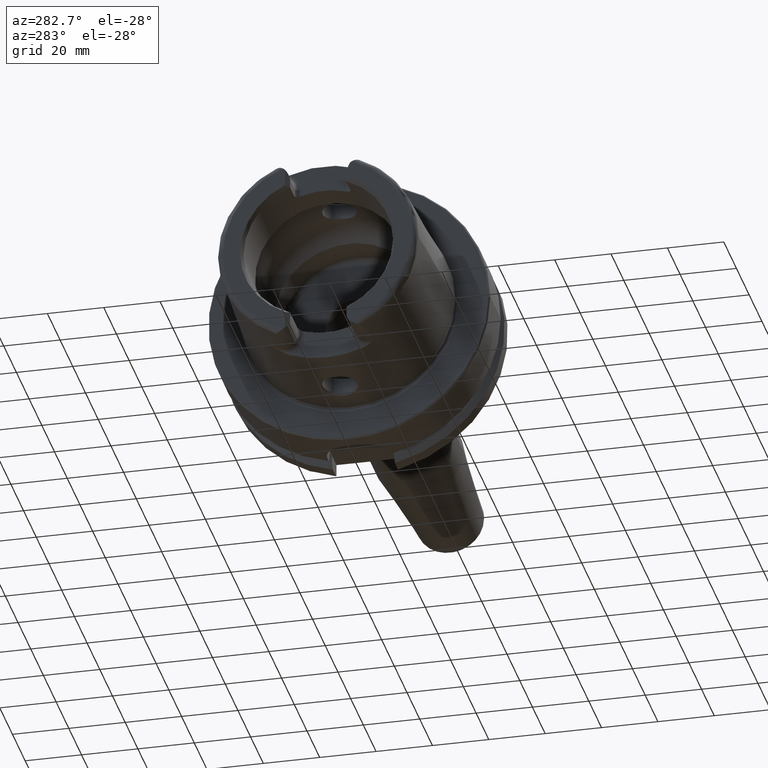
[diagram: clean part render]
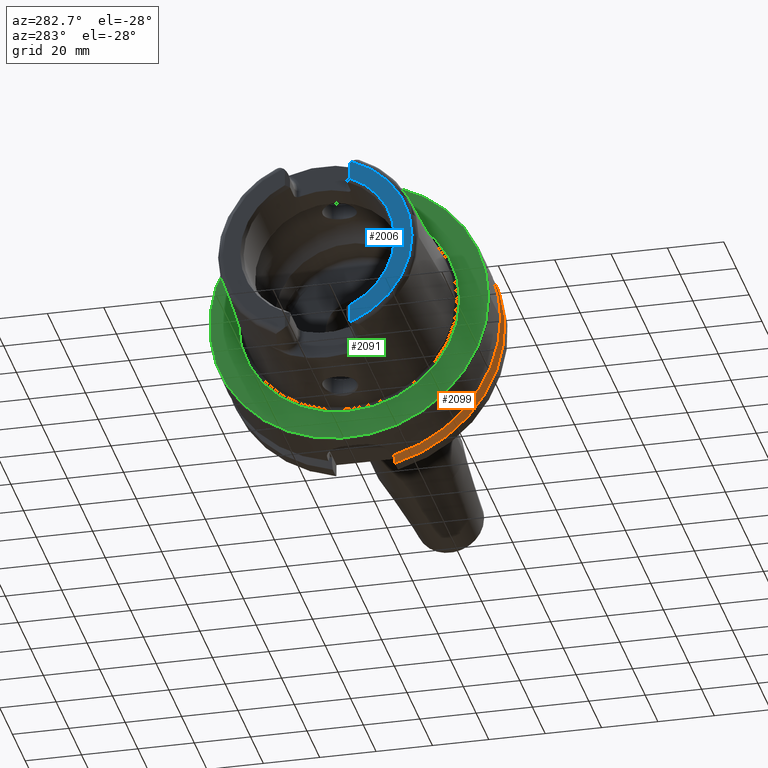
[diagram: same view with three faces highlighted in distinct colors, each labeled with its STEP entity id]
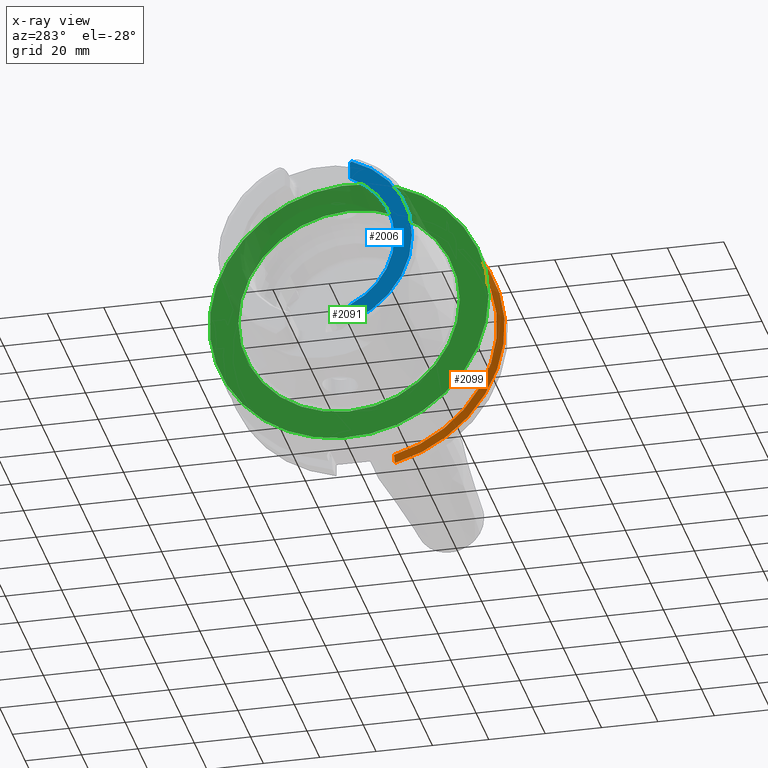
[diagram: x-ray of the same camera — body ghosted, the three highlighted faces saturated]
A machine part, auxiliary view with three faces highlighted in distinct colors.
The next image is the same camera in x-ray (body ghosted, the three faces saturated) — at least one of them is partly hidden behind the body in this view.
Their STEP definitions:

[orange] entity #2099 — the highlighted conical surface has half-angle 60 deg.
#20=(
BOUNDED_CURVE()
B_SPLINE_CURVE(2,(#4000,#4001,#4002),.UNSPECIFIED.,.F.,.F.)
B_SPLINE_CURVE_WITH_KNOTS((3,3),(0.,0.343884390880419),.UNSPECIFIED.)
CURVE()
GEOMETRIC_REPRESENTATION_ITEM()
RATIONAL_B_SPLINE_CURVE((1.,1.00052016257005,1.))
REPRESENTATION_ITEM('')
);
#25=(
BOUNDED_CURVE()
B_SPLINE_CURVE(2,(#4215,#4216,#4217),.UNSPECIFIED.,.F.,.F.)
B_SPLINE_CURVE_WITH_KNOTS((3,3),(0.,0.28292349080556),.UNSPECIFIED.)
CURVE()
GEOMETRIC_REPRESENTATION_ITEM()
RATIONAL_B_SPLINE_CURVE((1.,1.0003193410929,1.))
REPRESENTATION_ITEM('')
);
#324=FACE_OUTER_BOUND('',#457,.T.);
#457=EDGE_LOOP('',(#1946,#1947,#1948,#1949));
#751=CIRCLE('',#2271,50.);
#803=CIRCLE('',#2376,47.5975952641917);
#929=VERTEX_POINT('',#3997);
#930=VERTEX_POINT('',#3999);
#964=VERTEX_POINT('',#4212);
#965=VERTEX_POINT('',#4214);
#1173=EDGE_CURVE('',#930,#929,#20,.T.);
#1223=EDGE_CURVE('',#965,#964,#25,.T.);
#1239=EDGE_CURVE('',#930,#964,#751,.T.);
#1324=EDGE_CURVE('',#929,#965,#803,.T.);
#1946=ORIENTED_EDGE('',*,*,#1173,.T.);
#1947=ORIENTED_EDGE('',*,*,#1324,.T.);
#1948=ORIENTED_EDGE('',*,*,#1223,.T.);
#1949=ORIENTED_EDGE('',*,*,#1239,.F.);
#1981=CONICAL_SURFACE('',#2377,48.7987976320958,1.0471975511966);
#2099=ADVANCED_FACE('',(#324),#1981,.T.);
#2271=AXIS2_PLACEMENT_3D('',#4277,#2759,#2760);
#2376=AXIS2_PLACEMENT_3D('',#4521,#2993,#2994);
#2377=AXIS2_PLACEMENT_3D('',#4522,#2995,#2996);
#2759=DIRECTION('center_axis',(1.,0.,0.));
#2760=DIRECTION('ref_axis',(0.,0.,-1.));
#2993=DIRECTION('center_axis',(1.,0.,0.));
#2994=DIRECTION('ref_axis',(0.,0.,-1.));
#2995=DIRECTION('center_axis',(1.,0.,0.));
#2996=DIRECTION('ref_axis',(0.,-0.951449961441176,-0.307803461438603));
#3997=CARTESIAN_POINT('',(21.875,-35.6830642593065,31.5));
#3999=CARTESIAN_POINT('',(23.2620290209214,-38.8297566307078,31.5));
#4000=CARTESIAN_POINT('Ctrl Pts',(23.2620290209214,-38.8297566307078,31.5));
#4001=CARTESIAN_POINT('Ctrl Pts',(22.5392272442767,-37.2176818849707,31.5));
#4002=CARTESIAN_POINT('Ctrl Pts',(21.875,-35.6830642593065,31.5));
#4212=CARTESIAN_POINT('',(23.2620290209214,-11.,-48.7749935930288));
#4214=CARTESIAN_POINT('',(21.875,-11.,-46.3090819919138));
#4215=CARTESIAN_POINT('Ctrl Pts',(21.875,-11.,-46.3090819919138));
#4216=CARTESIAN_POINT('Ctrl Pts',(22.5505288964237,-11.,-47.5116880808802));
#4217=CARTESIAN_POINT('Ctrl Pts',(23.2620290209214,-11.,-48.7749935930288));
#4277=CARTESIAN_POINT('Origin',(23.2620290209214,0.,0.));
#4521=CARTESIAN_POINT('Origin',(21.875,0.,0.));
#4522=CARTESIAN_POINT('Origin',(22.5685145104607,0.,0.));

[blue] entity #2006 — the highlighted planar face has unit normal (-1, 0, 0).
#105=PLANE('',#2186);
#231=FACE_OUTER_BOUND('',#357,.T.);
#357=EDGE_LOOP('',(#1436,#1437,#1438,#1439,#1440,#1441));
#487=LINE('',#3172,#595);
#489=LINE('',#3191,#597);
#595=VECTOR('',#2521,10.);
#597=VECTOR('',#2543,10.);
#704=CIRCLE('',#2182,27.3660254037844);
#707=CIRCLE('',#2187,4.88);
#708=CIRCLE('',#2188,33.6001839277785);
#709=CIRCLE('',#2189,4.88);
#854=VERTEX_POINT('',#3169);
#855=VERTEX_POINT('',#3171);
#857=VERTEX_POINT('',#3177);
#860=VERTEX_POINT('',#3185);
#861=VERTEX_POINT('',#3187);
#862=VERTEX_POINT('',#3189);
#1074=EDGE_CURVE('',#854,#855,#487,.T.);
#1077=EDGE_CURVE('',#855,#857,#704,.T.);
#1081=EDGE_CURVE('',#854,#860,#707,.T.);
#1082=EDGE_CURVE('',#861,#860,#708,.T.);
#1083=EDGE_CURVE('',#861,#862,#709,.T.);
#1084=EDGE_CURVE('',#857,#862,#489,.T.);
#1436=ORIENTED_EDGE('',*,*,#1074,.F.);
#1437=ORIENTED_EDGE('',*,*,#1081,.T.);
#1438=ORIENTED_EDGE('',*,*,#1082,.F.);
#1439=ORIENTED_EDGE('',*,*,#1083,.T.);
#1440=ORIENTED_EDGE('',*,*,#1084,.F.);
#1441=ORIENTED_EDGE('',*,*,#1077,.F.);
#2006=ADVANCED_FACE('',(#231),#105,.T.);
#2182=AXIS2_PLACEMENT_3D('',#3178,#2527,#2528);
#2186=AXIS2_PLACEMENT_3D('',#3184,#2535,#2536);
#2187=AXIS2_PLACEMENT_3D('',#3186,#2537,#2538);
#2188=AXIS2_PLACEMENT_3D('',#3188,#2539,#2540);
#2189=AXIS2_PLACEMENT_3D('',#3190,#2541,#2542);
#2521=DIRECTION('',(0.,0.,1.));
#2527=DIRECTION('center_axis',(-1.,0.,0.));
#2528=DIRECTION('ref_axis',(0.,-1.,0.));
#2535=DIRECTION('center_axis',(-1.,0.,0.));
#2536=DIRECTION('ref_axis',(0.,0.,1.));
#2537=DIRECTION('center_axis',(-1.,0.,0.));
#2538=DIRECTION('ref_axis',(0.,-1.,0.));
#2539=DIRECTION('center_axis',(1.,0.,0.));
#2540=DIRECTION('ref_axis',(0.,0.,-1.));
#2541=DIRECTION('center_axis',(-1.,0.,0.));
#2542=DIRECTION('ref_axis',(0.,0.477884921181369,-0.878422450821629));
#2543=DIRECTION('',(0.,0.,1.));
#3169=CARTESIAN_POINT('',(-50.,-11.51,-30.8899431813596));
#3171=CARTESIAN_POINT('',(-50.,-11.51,-24.8277918148307));
#3172=CARTESIAN_POINT('',(-50.,-11.51,-13.685));
#3177=CARTESIAN_POINT('',(-50.,-11.51,24.8277918148307));
#3178=CARTESIAN_POINT('Origin',(-50.,0.,0.));
#3184=CARTESIAN_POINT('Origin',(-50.,33.6001839277785,0.));
#3185=CARTESIAN_POINT('',(-50.,-12.0743049948301,-31.355757348091));
#3186=CARTESIAN_POINT('Origin',(-50.,-14.89,-27.37));
#3187=CARTESIAN_POINT('',(-50.,-12.0743049948301,31.355757348091));
#3188=CARTESIAN_POINT('Origin',(-50.,0.,0.));
#3189=CARTESIAN_POINT('',(-50.,-11.51,30.8899431813596));
#3190=CARTESIAN_POINT('Origin',(-50.,-14.89,27.37));
#3191=CARTESIAN_POINT('',(-50.,-11.51,9.));

[green] entity #2091 — the highlighted planar face has unit normal (-1, 0, 0).
#97=FACE_BOUND('',#449,.T.);
#133=PLANE('',#2362);
#316=FACE_OUTER_BOUND('',#448,.T.);
#448=EDGE_LOOP('',(#1915));
#449=EDGE_LOOP('',(#1916));
#796=CIRCLE('',#2361,39.2747800249997);
#797=CIRCLE('',#2363,49.5);
#1009=VERTEX_POINT('',#4502);
#1010=VERTEX_POINT('',#4506);
#1316=EDGE_CURVE('',#1009,#1009,#796,.T.);
#1317=EDGE_CURVE('',#1010,#1010,#797,.T.);
#1915=ORIENTED_EDGE('',*,*,#1317,.F.);
#1916=ORIENTED_EDGE('',*,*,#1316,.T.);
#2091=ADVANCED_FACE('',(#316,#97),#133,.T.);
#2361=AXIS2_PLACEMENT_3D('',#4504,#2962,#2963);
#2362=AXIS2_PLACEMENT_3D('',#4505,#2964,#2965);
#2363=AXIS2_PLACEMENT_3D('',#4507,#2966,#2967);
#2962=DIRECTION('center_axis',(1.,0.,0.));
#2963=DIRECTION('ref_axis',(0.,0.,-1.));
#2964=DIRECTION('center_axis',(-1.,0.,0.));
#2965=DIRECTION('ref_axis',(0.,0.,1.));
#2966=DIRECTION('center_axis',(1.,0.,0.));
#2967=DIRECTION('ref_axis',(0.,0.,-1.));
#4502=CARTESIAN_POINT('',(-1.04950770296597E-15,-39.2747800249997,-4.80977336448322E-15));
#4504=CARTESIAN_POINT('Origin',(0.,0.,0.));
#4505=CARTESIAN_POINT('Origin',(0.,49.5,0.));
#4506=CARTESIAN_POINT('',(1.28369537222284E-15,-49.5,-6.0620016557794E-15));
#4507=CARTESIAN_POINT('Origin',(0.,0.,0.));